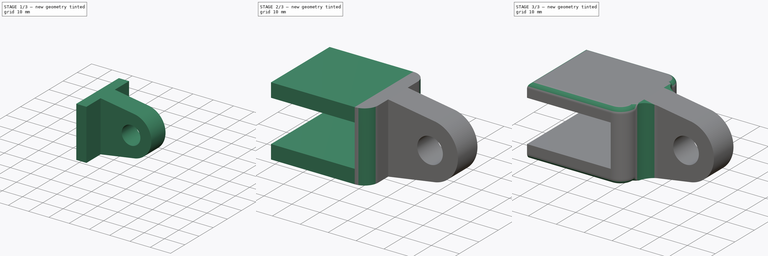
[diagram: build sequence overview — one tinted view per stage of 3, left to right]
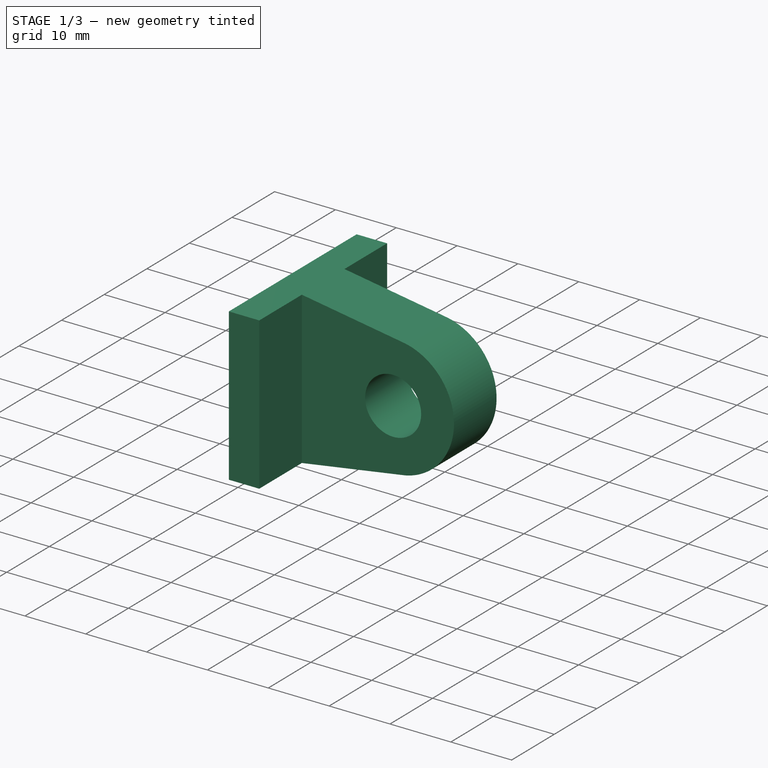
[diagram: stage 1 of 3 — iso view after this stage's code; geometry added in this stage tinted green]
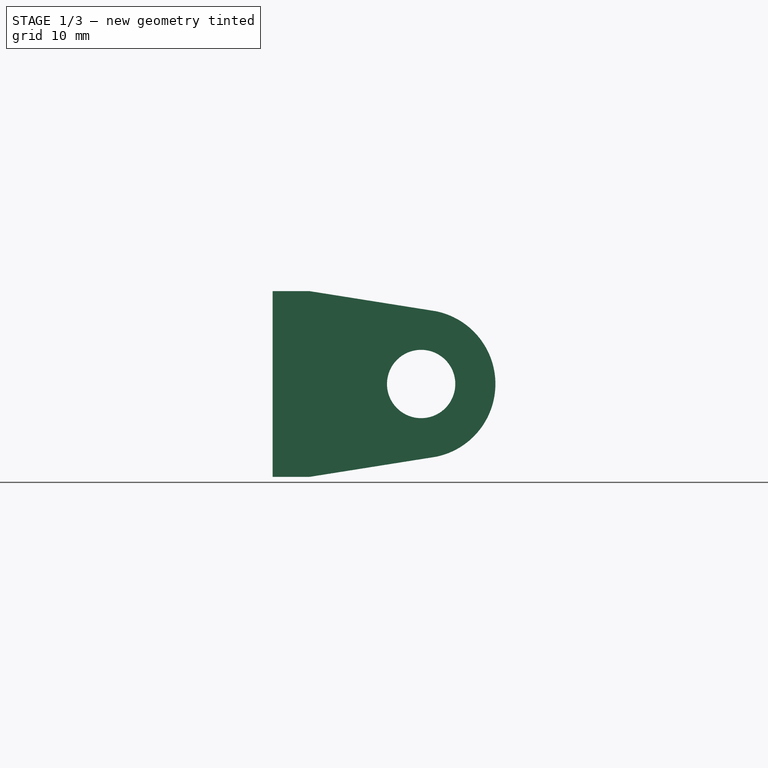
[diagram: stage 1 of 3 — front view after this stage's code; geometry added in this stage tinted green]
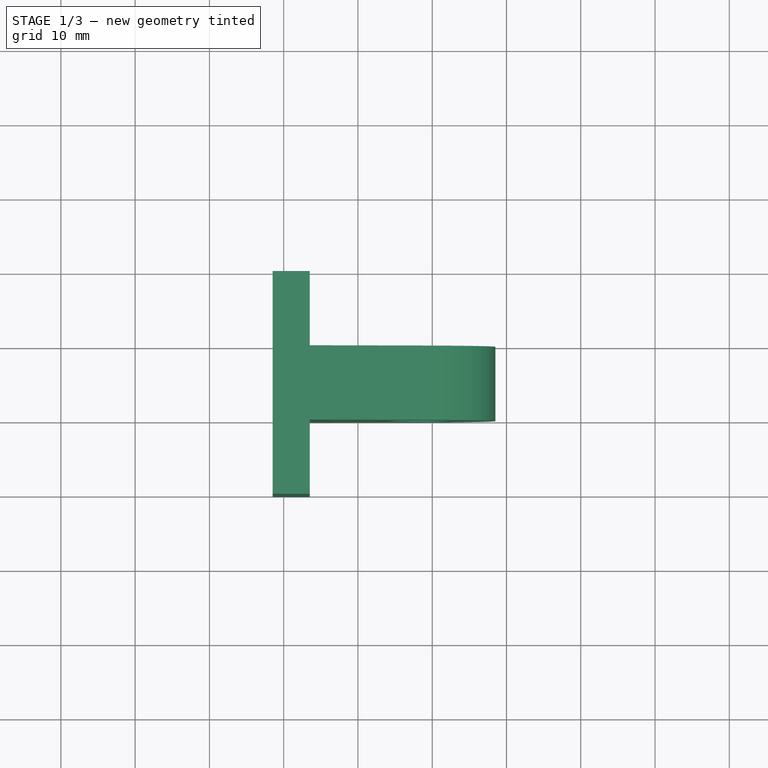
[diagram: stage 1 of 3 — top view after this stage's code; geometry added in this stage tinted green]
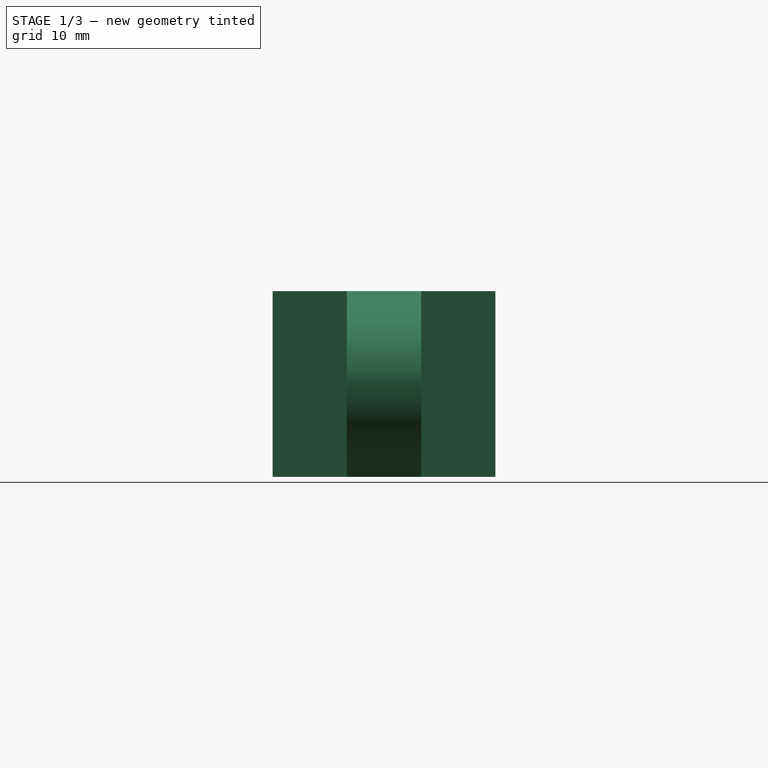
[diagram: stage 1 of 3 — right view after this stage's code; geometry added in this stage tinted green]
FCSTD DOCUMENT  (FreeCAD 0.16R6712 (Git))
Label: accroche
License: All rights reserved
LicenseURL: http://en.wikipedia.org/wiki/All_rights_reserved
objects: Sketcher::SketchObject×3, PartDesign::Pad×3, PartDesign::Fillet×3
note: 12 computed .brp shape members not serialized (recipe doc carries the construction recipe); baked Part::Feature solids carry a one-line shape summary decoded from their .brp

FEATURE [Sketcher::SketchObject] Sketch003
  Placement = pos=(0,0,0) rot=(1,0,0;1.5708rad)
  sketch-geometry (5):
    g0: Circle CenterX=-71.4923 CenterY=-31.7706 CenterZ=0 NormalX=0 NormalY=0 NormalZ=1 Radius=4.6
    g1: ArcOfCircle CenterX=-71.4923 CenterY=-31.7706 CenterZ=0 NormalX=0 NormalY=0 NormalZ=1 Radius=10 StartAngle=4.91375 EndAngle=7.65262
    g2: LineSegment StartX=-69.4923 StartY=-21.9727 StartZ=0 EndX=-86.4923 EndY=-19.2706 EndZ=0
    g3: LineSegment StartX=-69.4923 StartY=-41.5686 StartZ=0 EndX=-86.4923 EndY=-44.2706 EndZ=0
    g4: LineSegment StartX=-86.4923 StartY=-19.2706 StartZ=0 EndX=-86.4923 EndY=-44.2706 EndZ=0
  constraints (13):
    c: Coincident(g1,g0)
    c: Radius(g0) = 4.6
    c: Radius(g1) = 10
    c: Coincident(g2,g1)
    c: Coincident(g3,g1)
    c: DistanceY(g0,g2) = 12.5
    c: DistanceX(g2,g0) = 15
    c: DistanceX(g1,g1) = 0
    c: DistanceX(g0,g1) = 2
    c: DistanceX(g3,g2) = 0
    c: DistanceY(g3,g0) = 12.5
    c: Coincident(g4,g2)
    c: Coincident(g4,g3)
FEATURE [PartDesign::Pad] Pad002
  Length = 10
  Length2 = 100
  Placement = pos=(0,0,0) rot=(1,0,0;1.5708rad)
  Sketch = -> Sketch003
  Type = 0
FEATURE [Sketcher::SketchObject] Sketch004
  ExternalGeometry = -> [Pad002]
  Placement = pos=(-86.4923,0,0) rot=(0.707107,0,-0.707107;3.14159rad)
  Support = -> Pad002 [Face3]
  sketch-geometry (4):
    g0: LineSegment StartX=19.2706 StartY=-10 StartZ=0 EndX=44.2706 EndY=-10 EndZ=0
    g1: LineSegment StartX=44.2706 StartY=-10 StartZ=0 EndX=44.2706 EndY=20 EndZ=0
    g2: LineSegment StartX=44.2706 StartY=20 StartZ=0 EndX=19.2706 EndY=20 EndZ=0
    g3: LineSegment StartX=19.2706 StartY=20 StartZ=0 EndX=19.2706 EndY=-10 EndZ=0
  constraints (12):
    c: DistanceY(g0,g-3) = 10
    c: Coincident(g0,g1)
    c: Coincident(g1,g2)
    c: Coincident(g2,g3)
    c: Coincident(g3,g0)
    c: Horizontal(g0)
    c: Horizontal(g2)
    c: Vertical(g1)
    c: Vertical(g3)
    c: DistanceX(g-3,g0) = 0
    c: DistanceX(g1,g-4) = 0
    c: DistanceY(g-4,g1) = 10
FEATURE [PartDesign::Pad] Pad003
  Length = 5
  Length2 = 100
  Placement = pos=(0,0,0) rot=(1,0,0;1.5708rad)
  Sketch = -> Sketch004
  Type = 0
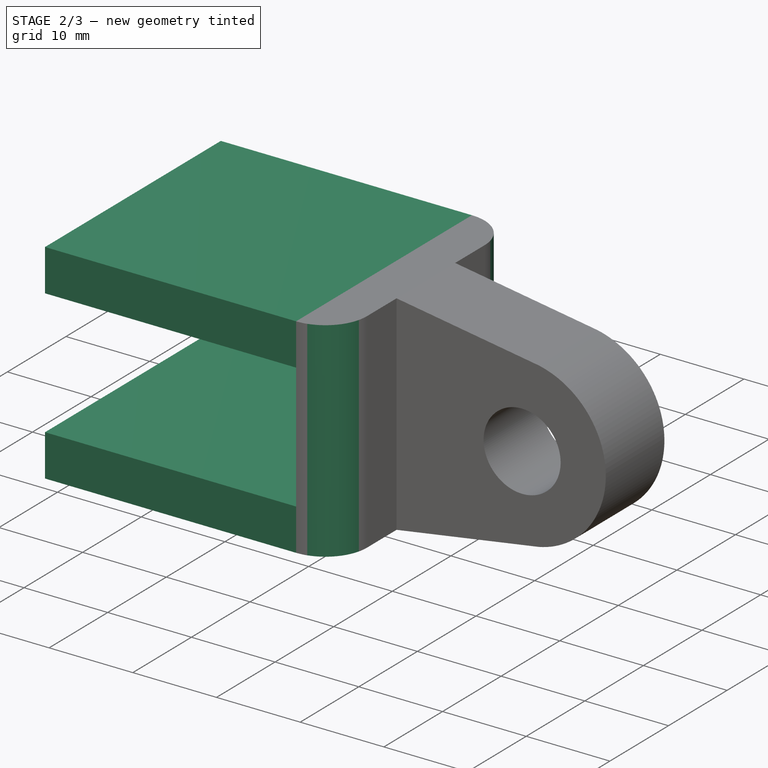
[diagram: stage 2 of 3 — iso view after this stage's code; geometry added in this stage tinted green]
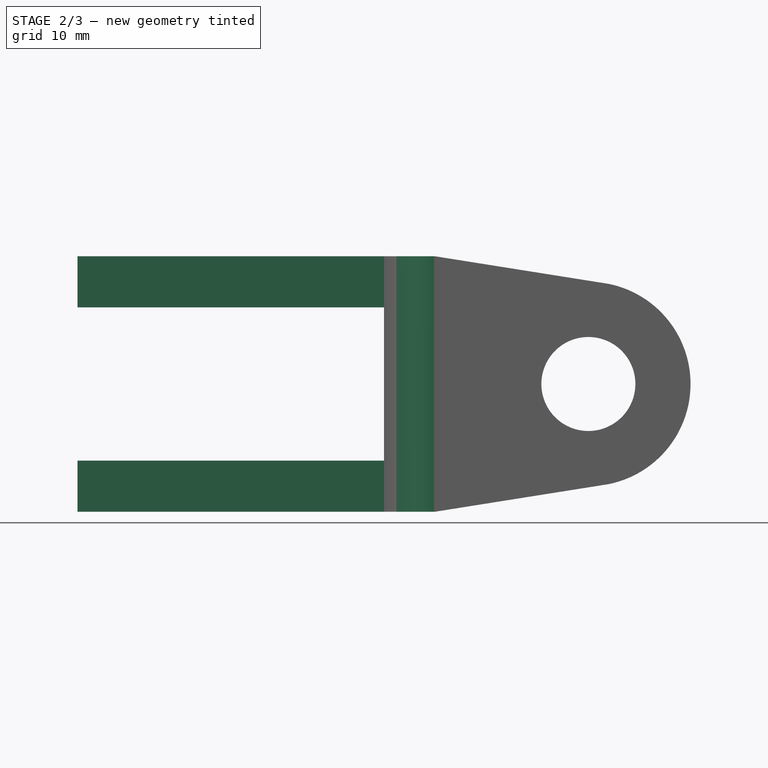
[diagram: stage 2 of 3 — front view after this stage's code; geometry added in this stage tinted green]
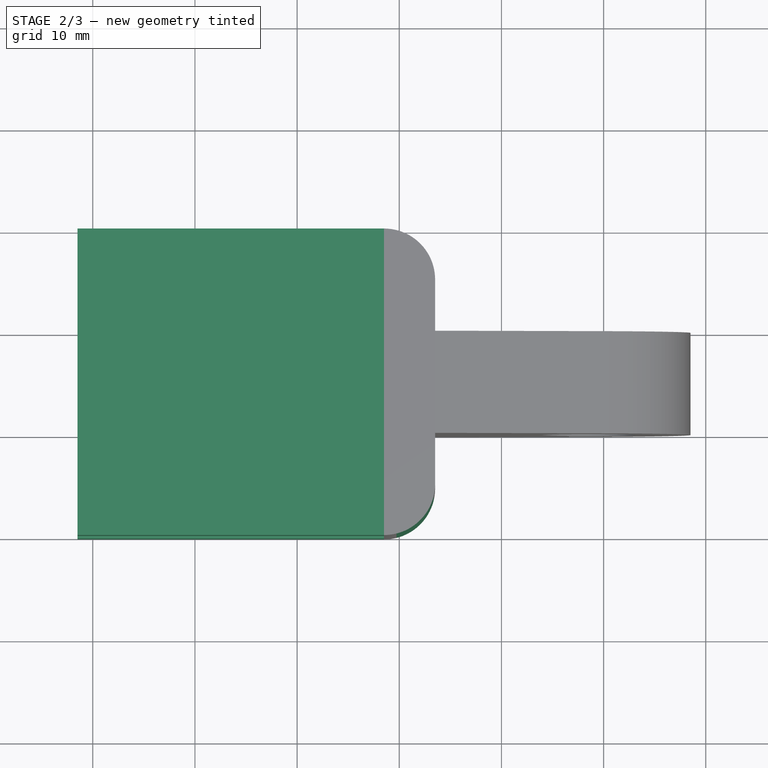
[diagram: stage 2 of 3 — top view after this stage's code; geometry added in this stage tinted green]
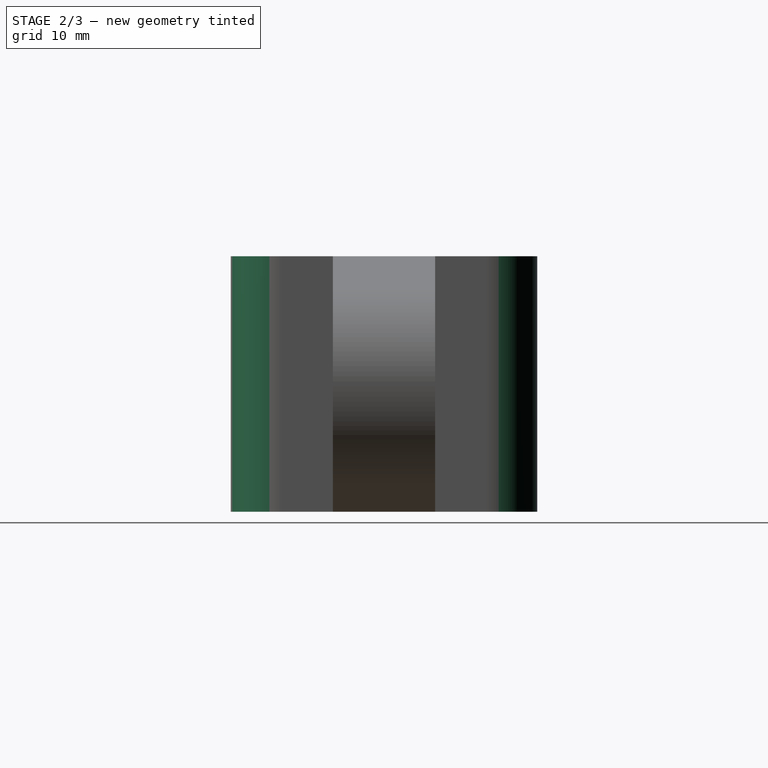
[diagram: stage 2 of 3 — right view after this stage's code; geometry added in this stage tinted green]
FEATURE [Sketcher::SketchObject] Sketch005
  ExternalGeometry = -> [Pad003]
  Placement = pos=(-91.4923,0,0) rot=(0.707107,0,-0.707107;3.14159rad)
  Support = -> Pad003 [Face12]
  sketch-geometry (8):
    g0: LineSegment StartX=19.2706 StartY=20 StartZ=0 EndX=24.2706 EndY=20 EndZ=0
    g1: LineSegment StartX=24.2706 StartY=20 StartZ=0 EndX=24.2706 EndY=-10 EndZ=0
    g2: LineSegment StartX=24.2706 StartY=-10 StartZ=0 EndX=19.2706 EndY=-10 EndZ=0
    g3: LineSegment StartX=19.2706 StartY=-10 StartZ=0 EndX=19.2706 EndY=20 EndZ=0
    g4: LineSegment StartX=44.2706 StartY=20 StartZ=0 EndX=39.2706 EndY=20 EndZ=0
    g5: LineSegment StartX=39.2706 StartY=20 StartZ=0 EndX=39.2706 EndY=-10 EndZ=0
    g6: LineSegment StartX=39.2706 StartY=-10 StartZ=0 EndX=44.2706 EndY=-10 EndZ=0
    g7: LineSegment StartX=44.2706 StartY=-10 StartZ=0 EndX=44.2706 EndY=20 EndZ=0
  constraints (22):
    c: Coincident(g0,g1)
    c: Coincident(g1,g2)
    c: Coincident(g2,g3)
    c: Coincident(g3,g0)
    c: Horizontal(g0)
    c: Horizontal(g2)
    c: Vertical(g1)
    c: Vertical(g3)
    c: Coincident(g0,g-3)
    c: Coincident(g4,g5)
    c: Coincident(g5,g6)
    c: Coincident(g6,g7)
    c: Coincident(g7,g4)
    c: Horizontal(g4)
    c: Horizontal(g6)
    c: Vertical(g5)
    c: Vertical(g7)
    c: Coincident(g4,g-3)
    c: DistanceY(g7,g7) = 30
    c: DistanceY(g1,g1) = 30
    c: DistanceX(g2,g2) = 5
    c: DistanceX(g6,g6) = 5
FEATURE [PartDesign::Pad] Pad004
  Length = 30
  Length2 = 100
  Placement = pos=(0,0,0) rot=(1,0,0;1.5708rad)
  Sketch = -> Sketch005
  Type = 0
FEATURE [PartDesign::Fillet] Fillet
  Base = -> Pad004 [Edge25,Edge27]
  Placement = pos=(0,0,0) rot=(1,0,0;1.5708rad)
  Radius = 4.99
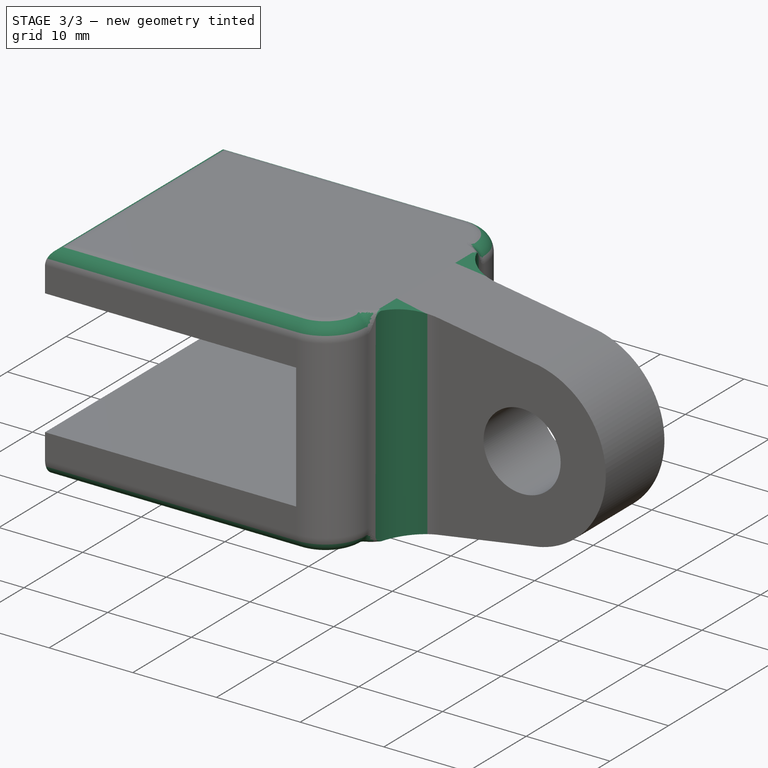
[diagram: stage 3 of 3 — iso view after this stage's code; geometry added in this stage tinted green]
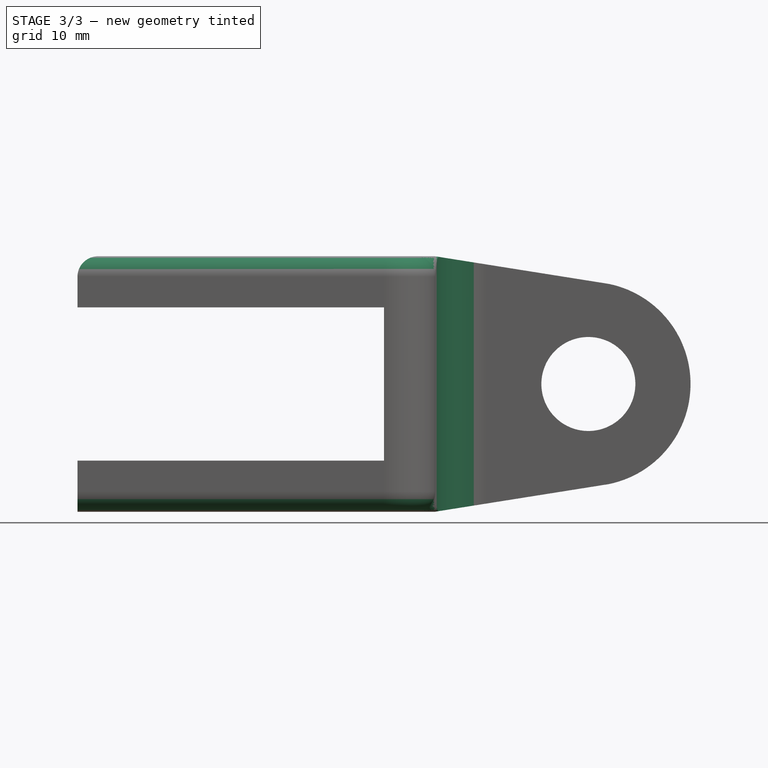
[diagram: stage 3 of 3 — front view after this stage's code; geometry added in this stage tinted green]
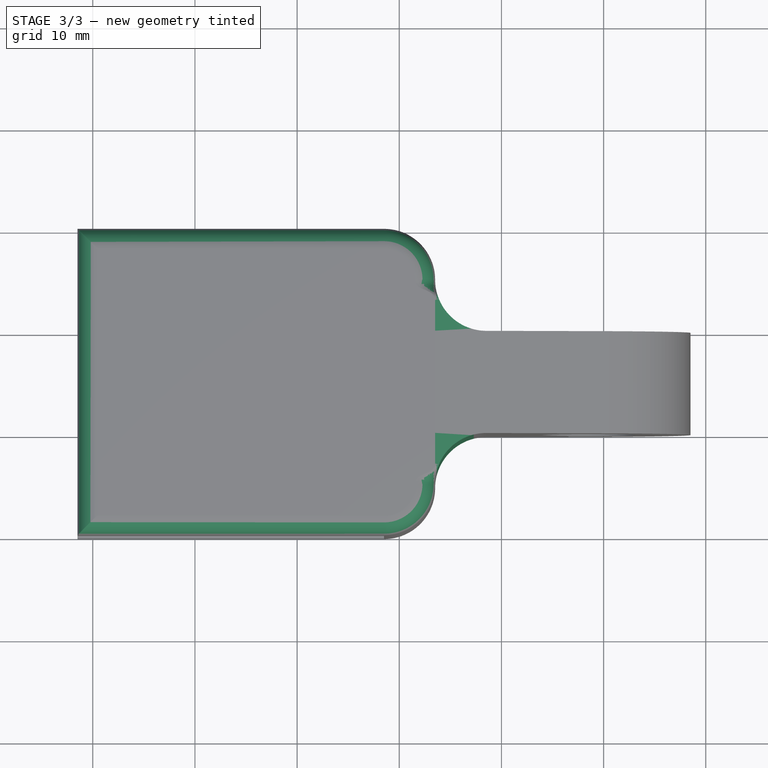
[diagram: stage 3 of 3 — top view after this stage's code; geometry added in this stage tinted green]
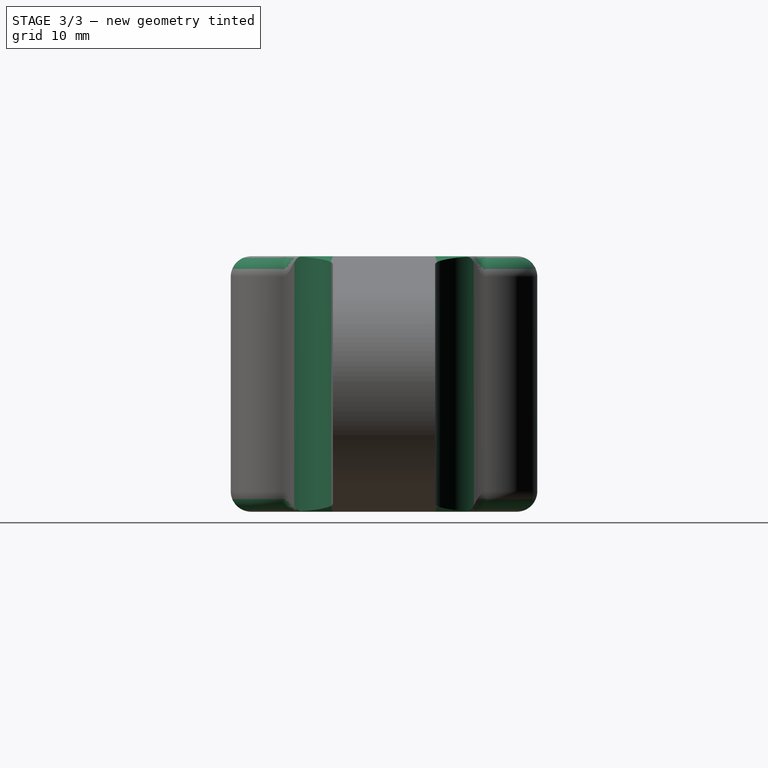
[diagram: stage 3 of 3 — right view after this stage's code; geometry added in this stage tinted green]
FEATURE [PartDesign::Fillet] Fillet001
  Base = -> Fillet [Edge31,Edge19]
  Placement = pos=(0,0,0) rot=(1,0,0;1.5708rad)
  Radius = 5
FEATURE [PartDesign::Fillet] Fillet002
  Base = -> Fillet001 [Edge62,Edge54,Edge27,Edge25,Edge42,Edge65]
  Placement = pos=(0,0,0) rot=(1,0,0;1.5708rad)
  Radius = 2
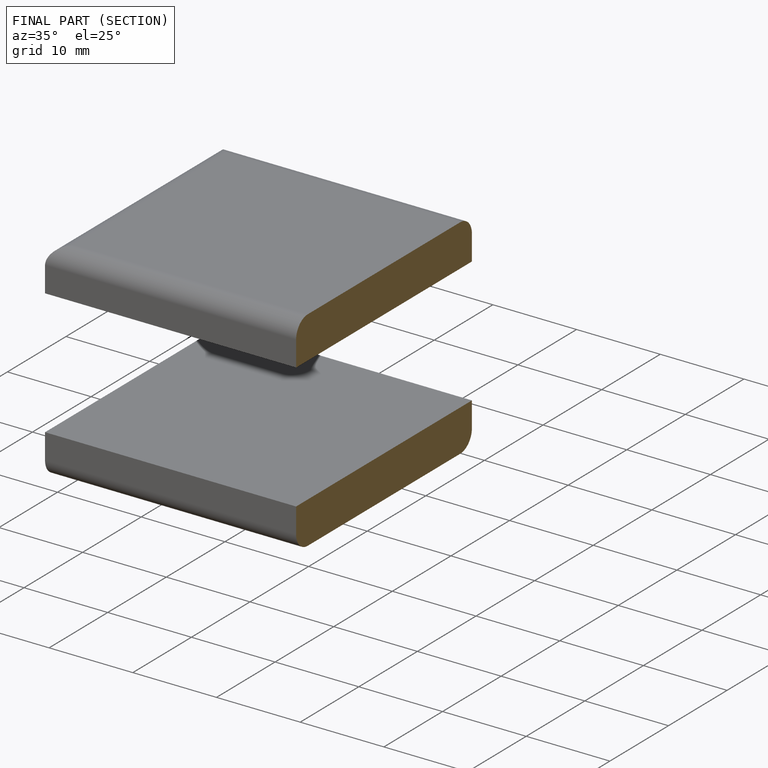
[diagram: finished part — half-section view (interior)]
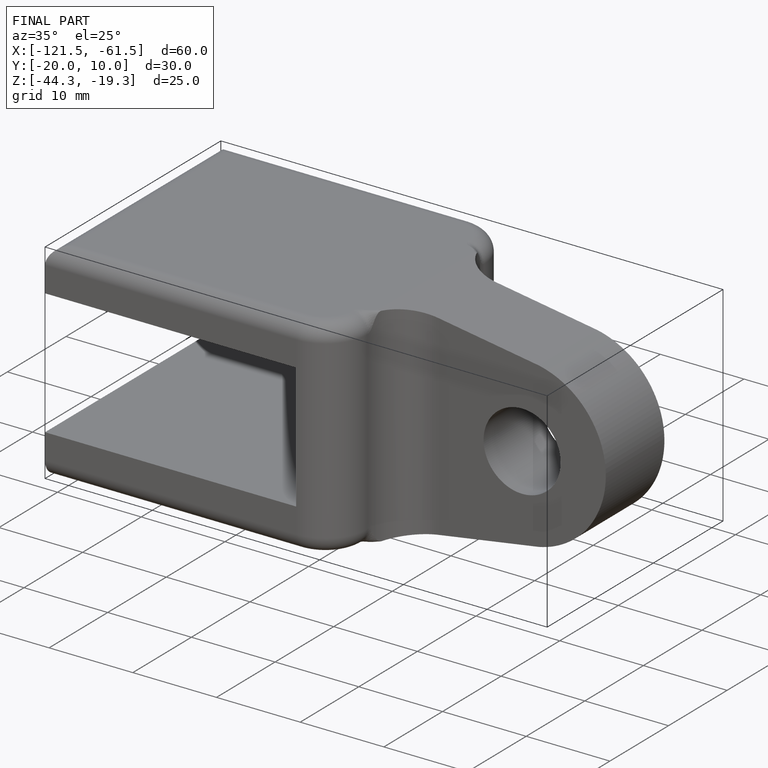
[diagram: finished part — iso view with bounding-box wireframe]
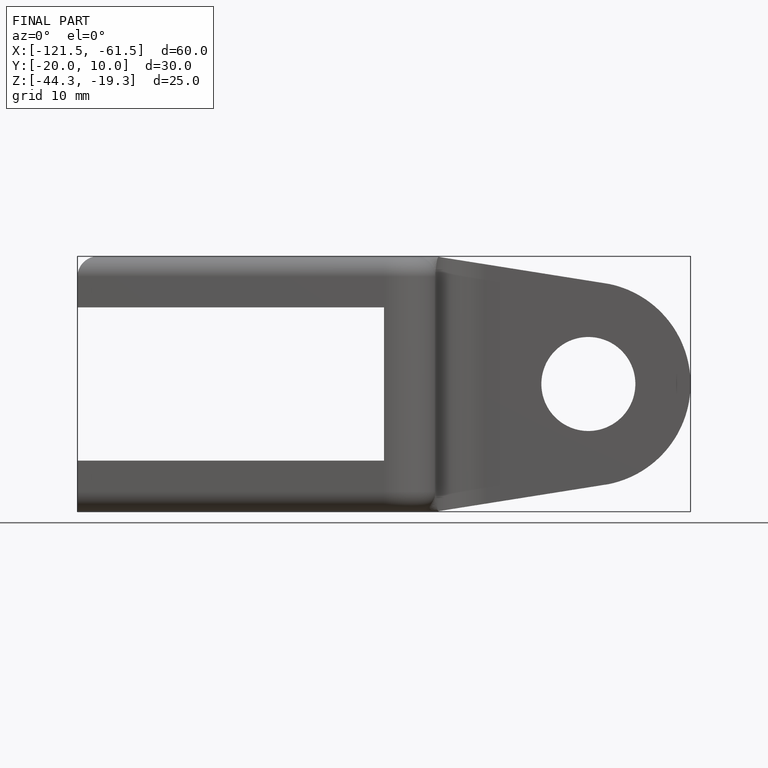
[diagram: finished part — front view with bounding-box wireframe]
